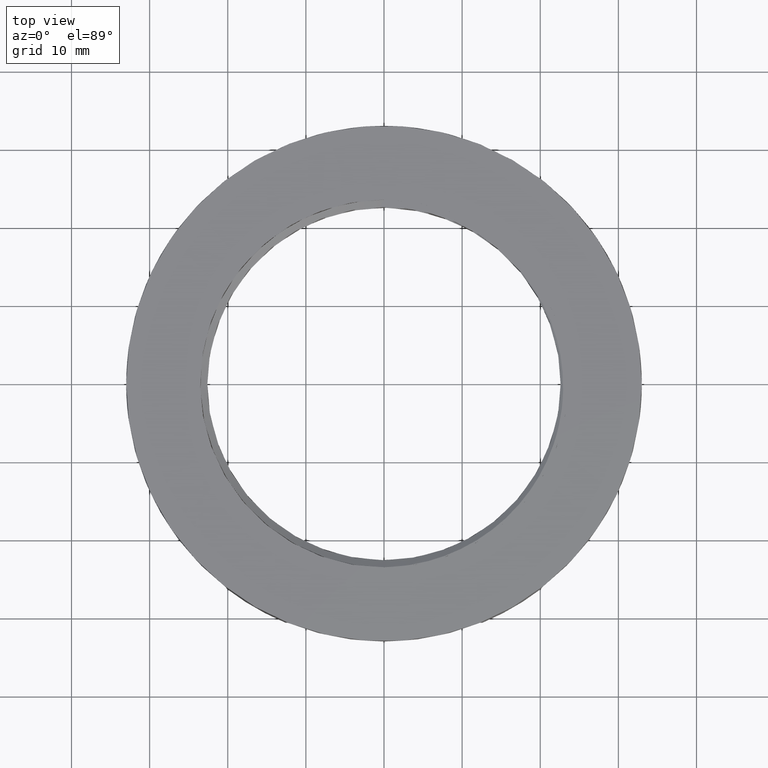
[diagram: clean part render]
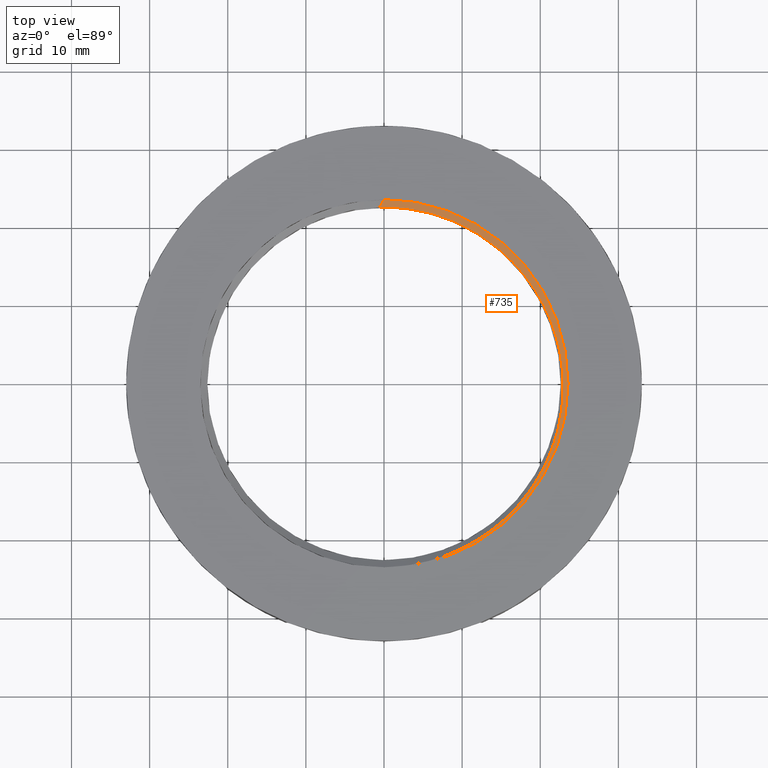
[diagram: same view with one face highlighted and labeled with its STEP entity id]
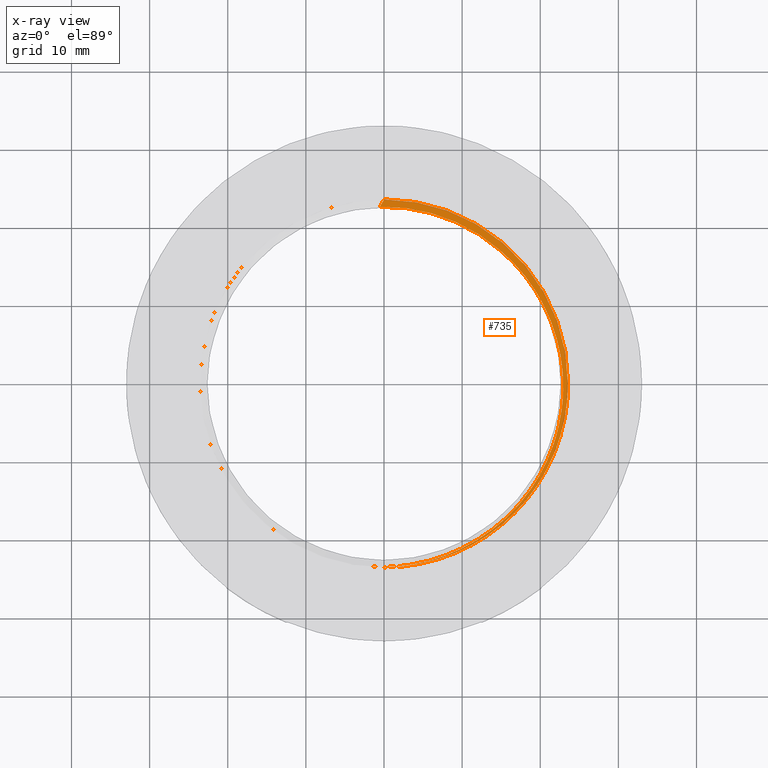
[diagram: x-ray of the same camera — body ghosted, the highlighted face saturated]
A machine part, top view. The second image highlights one B-rep face of the part: STEP entity #735.
The next image is the same camera in x-ray: the body ghosted, the highlighted face saturated — about 0% of this face is hidden behind the body in this view.
In plain terms, the highlighted planar face has unit normal (0, 0, 1).
Its self-contained STEP definition (entity closure, byte-faithful):
#1 = DIRECTION ( 'NONE',  ( -1.000000000000000000, 0.0000000000000000000, 0.0000000000000000000 ) ) ;
#2 = DIRECTION ( 'NONE',  ( -0.0000000000000000000, -0.0000000000000000000, -1.000000000000000000 ) ) ;
#41 = EDGE_LOOP ( 'NONE', ( #105, #119, #78, #123, #85, #84, #131, #107, #132 ) ) ;
#62 = CARTESIAN_POINT ( 'NONE',  ( -23.55000000000000100, 0.0000000000000000000, 7.169612013163337000 ) ) ;
#78 = ORIENTED_EDGE ( 'NONE', *, *, #642, .T. ) ;
#84 = ORIENTED_EDGE ( 'NONE', *, *, #632, .T. ) ;
#85 = ORIENTED_EDGE ( 'NONE', *, *, #685, .T. ) ;
#105 = ORIENTED_EDGE ( 'NONE', *, *, #683, .T. ) ;
#107 = ORIENTED_EDGE ( 'NONE', *, *, #618, .T. ) ;
#119 = ORIENTED_EDGE ( 'NONE', *, *, #603, .T. ) ;
#123 = ORIENTED_EDGE ( 'NONE', *, *, #681, .T. ) ;
#131 = ORIENTED_EDGE ( 'NONE', *, *, #687, .T. ) ;
#132 = ORIENTED_EDGE ( 'NONE', *, *, #677, .T. ) ;
#261 = VERTEX_POINT ( 'NONE', #325 ) ;
#263 = VERTEX_POINT ( 'NONE', #342 ) ;
#267 = VERTEX_POINT ( 'NONE', #62 ) ;
#278 = VERTEX_POINT ( 'NONE', #316 ) ;
#295 = VERTEX_POINT ( 'NONE', #358 ) ;
#296 = VERTEX_POINT ( 'NONE', #370 ) ;
#316 = CARTESIAN_POINT ( 'NONE',  ( 23.55000000000000100, 2.884043211992017000E-015, 7.169612013163337000 ) ) ;
#323 = VERTEX_POINT ( 'NONE', #379 ) ;
#325 = CARTESIAN_POINT ( 'NONE',  ( 0.0009063139897975565900, 23.54971628003047000, 7.169612013163344100 ) ) ;
#341 = VERTEX_POINT ( 'NONE', #393 ) ;
#342 = CARTESIAN_POINT ( 'NONE',  ( -23.54909368600987200, -0.0002837199695511540800, 7.169612013163344100 ) ) ;
#347 = VERTEX_POINT ( 'NONE', #384 ) ;
#358 = CARTESIAN_POINT ( 'NONE',  ( -2.148277602724423000, -23.45181023592065000, 7.169612013163153100 ) ) ;
#370 = CARTESIAN_POINT ( 'NONE',  ( -7.035146582257810100, -22.47463487058568900, 7.169612013163332500 ) ) ;
#379 = CARTESIAN_POINT ( 'NONE',  ( 0.02030104307557786800, -23.51669106375773000, 7.169612013163296100 ) ) ;
#384 = CARTESIAN_POINT ( 'NONE',  ( -0.5444621070615036600, 22.60511046592372300, 7.169612013163344100 ) ) ;
#393 = CARTESIAN_POINT ( 'NONE',  ( 14.74053201905727500, 17.14744811513977400, 7.169612013163341400 ) ) ;
#463 = DIRECTION ( 'NONE',  ( 1.000000000000000000, 0.0000000000000000000, 0.0000000000000000000 ) ) ;
#464 = DIRECTION ( 'NONE',  ( 0.0000000000000000000, 0.0000000000000000000, 1.000000000000000000 ) ) ;
#466 = CARTESIAN_POINT ( 'NONE',  ( 0.0000000000000000000, 0.0000000000000000000, 7.169612013163337000 ) ) ;
#535 = DIRECTION ( 'NONE',  ( 1.000000000000000000, 1.776357135887585700E-015, 0.0000000000000000000 ) ) ;
#536 = DIRECTION ( 'NONE',  ( -0.0000000000000000000, -0.0000000000000000000, -1.000000000000000000 ) ) ;
#540 = CARTESIAN_POINT ( 'NONE',  ( 0.0009063139901307752800, -0.0002837199695511540800, 7.169612013163344100 ) ) ;
#569 = CARTESIAN_POINT ( 'NONE',  ( 0.0009063139901307752800, -0.0002837199695511540800, 7.169612013163344100 ) ) ;
#603 = EDGE_CURVE ( 'NONE', #295, #278, #962, .T. ) ;
#618 = EDGE_CURVE ( 'NONE', #347, #341, #975, .T. ) ;
#632 = EDGE_CURVE ( 'NONE', #263, #261, #1003, .T. ) ;
#642 = EDGE_CURVE ( 'NONE', #278, #267, #1011, .T. ) ;
#677 = EDGE_CURVE ( 'NONE', #341, #323, #1986, .T. ) ;
#681 = EDGE_CURVE ( 'NONE', #267, #296, #951, .T. ) ;
#683 = EDGE_CURVE ( 'NONE', #323, #295, #1987, .T. ) ;
#685 = EDGE_CURVE ( 'NONE', #296, #263, #956, .T. ) ;
#687 = EDGE_CURVE ( 'NONE', #261, #347, #1243, .T. ) ;
#735 = ADVANCED_FACE ( 'NONE', ( #839 ), #841, .T. ) ;
#809 = DIRECTION ( 'NONE',  ( 1.000000000000000000, 0.0000000000000000000, -0.0000000000000000000 ) ) ;
#839 = FACE_OUTER_BOUND ( 'NONE', #41, .T. ) ;
#841 = PLANE ( 'NONE',  #1844 ) ;
#842 = CARTESIAN_POINT ( 'NONE',  ( 34.35020864514555700, -0.0002837199695467792200, 7.169612013163344100 ) ) ;
#847 = DIRECTION ( 'NONE',  ( 0.0000000000000000000, 0.0000000000000000000, 1.000000000000000000 ) ) ;
#951 = CIRCLE ( 'NONE', #952, 23.55000000000000100 ) ;
#952 = AXIS2_PLACEMENT_3D ( 'NONE', #1228, #1235, #1226 ) ;
#956 = CIRCLE ( 'NONE', #958, 23.55000000000000100 ) ;
#958 = AXIS2_PLACEMENT_3D ( 'NONE', #1270, #1250, #1254 ) ;
#961 = VECTOR ( 'NONE', #1246, 1000.000000000000100 ) ;
#962 = CIRCLE ( 'NONE', #966, 23.55000000000000100 ) ;
#966 = AXIS2_PLACEMENT_3D ( 'NONE', #466, #464, #463 ) ;
#975 = CIRCLE ( 'NONE', #981, 22.61197189575242900 ) ;
#981 = AXIS2_PLACEMENT_3D ( 'NONE', #540, #536, #535 ) ;
#1003 = CIRCLE ( 'NONE', #1004, 23.55000000000000100 ) ;
#1004 = AXIS2_PLACEMENT_3D ( 'NONE', #569, #2, #1 ) ;
#1011 = CIRCLE ( 'NONE', #1016, 23.55000000000000100 ) ;
#1016 = AXIS2_PLACEMENT_3D ( 'NONE', #1840, #1815, #1810 ) ;
#1144 = CARTESIAN_POINT ( 'NONE',  ( 15.19344830653155800, 16.77042211747999900, 7.169612013163342300 ) ) ;
#1163 = CARTESIAN_POINT ( 'NONE',  ( 14.74053201905727500, 17.14744811513977400, 7.169612013163341400 ) ) ;
#1167 = CARTESIAN_POINT ( 'NONE',  ( 15.63048157358800200, 16.37639828533482200, 7.169612013163345000 ) ) ;
#1170 = CARTESIAN_POINT ( 'NONE',  ( 16.47344679768744800, 15.55506633971900000, 7.169612013163343200 ) ) ;
#1173 = CARTESIAN_POINT ( 'NONE',  ( 20.77689256245704300, 9.344484585502062400, 7.169612013163344100 ) ) ;
#1174 = CARTESIAN_POINT ( 'NONE',  ( 19.96902299890679100, 10.90393832857876800, 7.169612013163344100 ) ) ;
#1175 = CARTESIAN_POINT ( 'NONE',  ( 21.48599976883310300, 7.728678095570290700, 7.169612013163345800 ) ) ;
#1176 = CARTESIAN_POINT ( 'NONE',  ( 22.46712678747793700, 4.382506467303917600, 7.169612013163345000 ) ) ;
#1177 = CARTESIAN_POINT ( 'NONE',  ( 22.85400777331680900, -2.597126657028852900, 7.169612013163344100 ) ) ;
#1178 = CARTESIAN_POINT ( 'NONE',  ( 22.86721304660365600, 1.484600095897003800, 7.169612013163346700 ) ) ;
#1179 = CARTESIAN_POINT ( 'NONE',  ( 22.36679806570456800, -5.472923195676282900, 7.169612013163348500 ) ) ;
#1180 = CARTESIAN_POINT ( 'NONE',  ( 18.73788391107331100, 12.87646266076545700, 7.169612013163342300 ) ) ;
#1181 = CARTESIAN_POINT ( 'NONE',  ( 18.03977442160476800, 13.80702021093821900, 7.169612013163345800 ) ) ;
#1182 = CARTESIAN_POINT ( 'NONE',  ( 21.87002125097015800, 6.628221530893682700, 7.169612013163345800 ) ) ;
#1183 = CARTESIAN_POINT ( 'NONE',  ( 22.68020725525593000, 3.237247028360947400, 7.169612013163346700 ) ) ;
#1184 = CARTESIAN_POINT ( 'NONE',  ( 22.90694090007550800, 0.8961732290965696000, 7.169612013163345000 ) ) ;
#1185 = CARTESIAN_POINT ( 'NONE',  ( 22.93555294959524100, -0.8548629651041921300, 7.169612013163345000 ) ) ;
#1186 = CARTESIAN_POINT ( 'NONE',  ( 22.71246411073463300, -3.751693084667419200, 7.169612013163346700 ) ) ;
#1187 = CARTESIAN_POINT ( 'NONE',  ( 22.22849903336160100, -6.047284732468880500, 7.169612013163343200 ) ) ;
#1188 = CARTESIAN_POINT ( 'NONE',  ( 19.67504953797047700, 11.40639039882384700, 7.169612013163344100 ) ) ;
#1189 = CARTESIAN_POINT ( 'NONE',  ( 20.51958946054979200, 9.873806837063741100, 7.169612013163343200 ) ) ;
#1190 = CARTESIAN_POINT ( 'NONE',  ( 22.94084531810007700, -0.2723652160406815300, 7.169612013163343200 ) ) ;
#1191 = CARTESIAN_POINT ( 'NONE',  ( 16.88000821233322300, 15.12686363686672700, 7.169612013163345800 ) ) ;
#1192 = CARTESIAN_POINT ( 'NONE',  ( 1.198405227590943400, -23.49789613871853100, 7.169612013163210000 ) ) ;
#1195 = CARTESIAN_POINT ( 'NONE',  ( 14.08973728599145900, -18.53210844732911900, 7.169612013163345000 ) ) ;
#1196 = CARTESIAN_POINT ( 'NONE',  ( 11.18778557794590100, -20.50471373263158600, 7.169612013163345800 ) ) ;
#1197 = CARTESIAN_POINT ( 'NONE',  ( 9.111721208086166300, -21.54911912793189200, 7.169612013163345000 ) ) ;
#1198 = CARTESIAN_POINT ( 'NONE',  ( 15.42768999945229600, -17.39692922979931200, 7.169612013163344100 ) ) ;
#1199 = CARTESIAN_POINT ( 'NONE',  ( 18.86549641950860600, -13.45275602318183200, 7.169612013163343200 ) ) ;
#1201 = CARTESIAN_POINT ( 'NONE',  ( 12.18560073414768800, -19.90626676791054800, 7.169612013163346700 ) ) ;
#1203 = CARTESIAN_POINT ( 'NONE',  ( 20.65088596010455300, -10.43030921858649100, 7.169612013163344100 ) ) ;
#1204 = CARTESIAN_POINT ( 'NONE',  ( 16.68554364546286800, -16.18701358405739300, 7.169612013163343200 ) ) ;
#1205 = CARTESIAN_POINT ( 'NONE',  ( 19.80949026920826500, -11.96409250031716300, 7.169612013163345000 ) ) ;
#1206 = CARTESIAN_POINT ( 'NONE',  ( 19.50874244287084400, -12.46643388403855500, 7.169612013163343200 ) ) ;
#1207 = CARTESIAN_POINT ( 'NONE',  ( 21.13102283516909500, -9.372256304487066800, 7.169612013163343200 ) ) ;
#1209 = CARTESIAN_POINT ( 'NONE',  ( 21.91038654696381400, -7.176591375020534800, 7.169612013163340500 ) ) ;
#1212 = CARTESIAN_POINT ( 'NONE',  ( 21.73067793554685100, -7.732162370795814300, 7.169612013163344100 ) ) ;
#1213 = CARTESIAN_POINT ( 'NONE',  ( 13.62046946672623800, -18.89133223703158000, 7.169612013163346700 ) ) ;
#1214 = CARTESIAN_POINT ( 'NONE',  ( 3.524838728225586000, -23.28358925915758300, 7.169612013163473700 ) ) ;
#1215 = CARTESIAN_POINT ( 'NONE',  ( 18.52614318102008900, -13.93179168509920600, 7.169612013163340500 ) ) ;
#1216 = CARTESIAN_POINT ( 'NONE',  ( 8.032859097189613000, -21.99529524045072600, 7.169612013163345800 ) ) ;
#1217 = CARTESIAN_POINT ( 'NONE',  ( 17.46075584423347800, -15.32128800462994900, 7.169612013163341400 ) ) ;
#1218 = CARTESIAN_POINT ( 'NONE',  ( 14.99251801509341100, -17.78541067450076000, 7.169612013163345800 ) ) ;
#1219 = CARTESIAN_POINT ( 'NONE',  ( 5.793727011836605100, -22.72774535991280900, 7.169612013163344100 ) ) ;
#1220 = CARTESIAN_POINT ( 'NONE',  ( 0.02030104307557786800, -23.51669106375773000, 7.169612013163296100 ) ) ;
#1225 = CARTESIAN_POINT ( 'NONE',  ( -1.426858001644204700, -23.50657795191672200, 7.169612013163344100 ) ) ;
#1226 = DIRECTION ( 'NONE',  ( 1.000000000000000000, 0.0000000000000000000, 0.0000000000000000000 ) ) ;
#1228 = CARTESIAN_POINT ( 'NONE',  ( 0.0000000000000000000, 0.0000000000000000000, 7.169612013163337000 ) ) ;
#1229 = CARTESIAN_POINT ( 'NONE',  ( 0.02030104307557786800, -23.51669106375773000, 7.169612013163296100 ) ) ;
#1230 = CARTESIAN_POINT ( 'NONE',  ( -0.7031101224173306200, -23.52823202830644400, 7.169612013163313000 ) ) ;
#1231 = CARTESIAN_POINT ( 'NONE',  ( -2.148277602724423000, -23.45181023592065000, 7.169612013163153100 ) ) ;
#1235 = DIRECTION ( 'NONE',  ( 0.0000000000000000000, 0.0000000000000000000, 1.000000000000000000 ) ) ;
#1243 = LINE ( 'NONE', #1271, #961 ) ;
#1246 = DIRECTION ( 'NONE',  ( -0.4999999999988170600, -0.8660254037851216100, 0.0000000000000000000 ) ) ;
#1250 = DIRECTION ( 'NONE',  ( -0.0000000000000000000, -0.0000000000000000000, -1.000000000000000000 ) ) ;
#1254 = DIRECTION ( 'NONE',  ( -1.000000000000000000, 0.0000000000000000000, 0.0000000000000000000 ) ) ;
#1270 = CARTESIAN_POINT ( 'NONE',  ( 0.0009063139901307752800, -0.0002837199695511540800, 7.169612013163344100 ) ) ;
#1271 = CARTESIAN_POINT ( 'NONE',  ( 0.0009063139898280350300, 23.54971628003052000, 7.169612013163344100 ) ) ;
#1810 = DIRECTION ( 'NONE',  ( 1.000000000000000000, 0.0000000000000000000, 0.0000000000000000000 ) ) ;
#1815 = DIRECTION ( 'NONE',  ( 0.0000000000000000000, 0.0000000000000000000, 1.000000000000000000 ) ) ;
#1840 = CARTESIAN_POINT ( 'NONE',  ( 0.0000000000000000000, 0.0000000000000000000, 7.169612013163337000 ) ) ;
#1844 = AXIS2_PLACEMENT_3D ( 'NONE', #842, #847, #809 ) ;
#1986 = B_SPLINE_CURVE_WITH_KNOTS ( 'NONE', 3,
 ( #1163, #1144, #1167, #1170, #1191, #1181, #1180, #1188, #1174, #1189, #1173, #1175, #1182, #1176, #1183, #1178, #1184, #1190, #1185, #1177, #1186, #1179, #1187, #1209, #1212, #1207, #1203, #1205, #1206, #1199, #1215, #1217, #1204, #1198, #1218, #1195, #1213, #1201, #1196, #1197, #1216, #1219, #1214, #1192, #1220 ),
 .UNSPECIFIED., .F., .F.,
 ( 4, 2, 2, 2, 2, 2, 2, 2, 2, 2, 2, 2, 2, 2, 2, 2, 2, 2, 2, 2, 2, 1, 4 ),
 ( 0.0000000000000000000, 0.001765017508022659300, 0.003530035016045318700, 0.007060070032090641700, 0.008825087540113301900, 0.01059010504813596500, 0.01412014006418129900, 0.01765017508022663100, 0.01941519258824930100, 0.02118021009627196700, 0.02471024511231730700, 0.02647526262033997700, 0.02824028012836265000, 0.03177031514440799300, 0.03353533265243065900, 0.03530035016045333200, 0.03883038517649867200, 0.04059540268452133800, 0.04236042019254400400, 0.04589045520858934400, 0.04942049022463467600, 0.05295052524068000200, 0.05648056025672533500 ),
 .UNSPECIFIED. ) ;
#1987 = B_SPLINE_CURVE_WITH_KNOTS ( 'NONE', 3,
 ( #1229, #1230, #1225, #1231 ),
 .UNSPECIFIED., .F., .F.,
 ( 4, 4 ),
 ( 1.833656924216109400E-017, 0.002170505268363585400 ),
 .UNSPECIFIED. ) ;